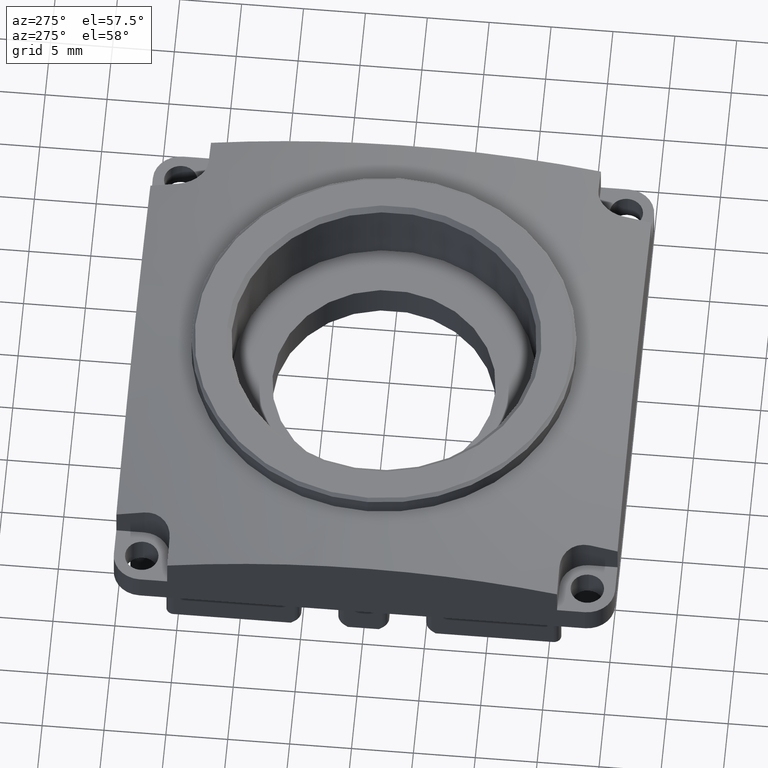
[diagram: clean part render]
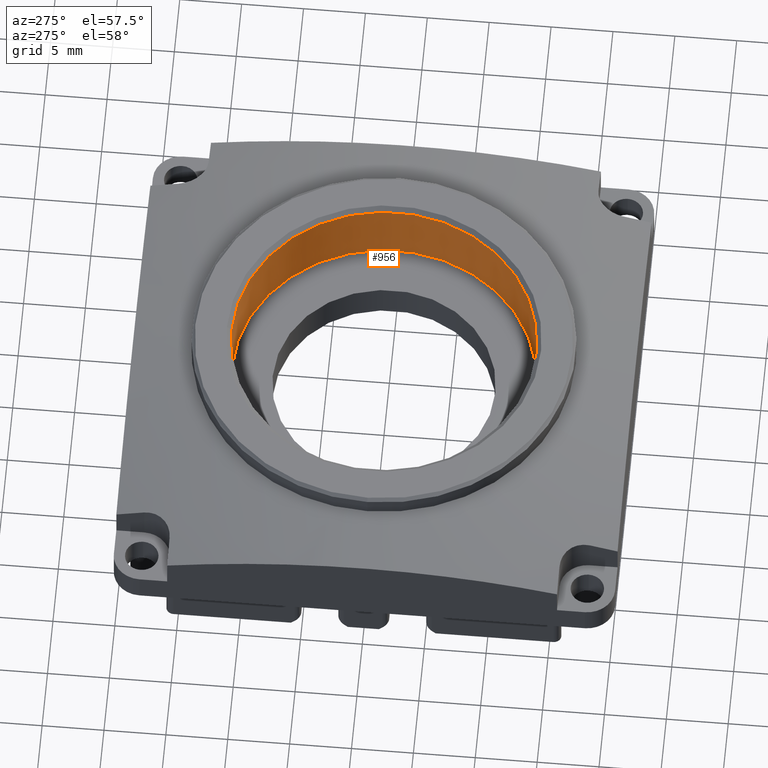
[diagram: same view with one face highlighted and labeled with its STEP entity id]
A machine part, auxiliary view. The second image highlights one B-rep face of the part: STEP entity #956.
In plain terms, the highlighted cylindrical surface (partial cylindrical patch) has radius 12.3 mm, axis along (0, 0, -1).
Its self-contained STEP definition (entity closure, byte-faithful):
#585=CYLINDRICAL_SURFACE('',#10841,12.3);
#956=ADVANCED_FACE('',(#1381),#585,.F.);
#1381=FACE_OUTER_BOUND('',#1849,.F.);
#1849=EDGE_LOOP('',(#3858,#3859,#3860,#3861));
#3858=ORIENTED_EDGE('',*,*,#7952,.F.);
#3859=ORIENTED_EDGE('',*,*,#7947,.F.);
#3860=ORIENTED_EDGE('',*,*,#7951,.T.);
#3861=ORIENTED_EDGE('',*,*,#7949,.F.);
#6889=CIRCLE('',#10458,12.3);
#6891=CIRCLE('',#10460,12.3);
#7947=EDGE_CURVE('',#9392,#9394,#6889,.T.);
#7949=EDGE_CURVE('',#9395,#9397,#6891,.T.);
#7951=EDGE_CURVE('',#9392,#9397,#8651,.T.);
#7952=EDGE_CURVE('',#9394,#9395,#8652,.T.);
#8651=LINE('',#15311,#9327);
#8652=LINE('',#15312,#9328);
#9327=VECTOR('',#12259,5.67);
#9328=VECTOR('',#12260,5.67);
#9392=VERTEX_POINT('',#13228);
#9394=VERTEX_POINT('',#13230);
#9395=VERTEX_POINT('',#13231);
#9397=VERTEX_POINT('',#13233);
#10458=AXIS2_PLACEMENT_3D('',#15307,#12251,#12252);
#10460=AXIS2_PLACEMENT_3D('',#15309,#12255,#12256);
#10841=AXIS2_PLACEMENT_3D('',#15740,#13067,#13068);
#12251=DIRECTION('',(0.,0.,-1.));
#12252=DIRECTION('',(0.,1.,0.));
#12255=DIRECTION('',(0.,0.,1.));
#12256=DIRECTION('',(0.,-1.,0.));
#12259=DIRECTION('',(0.,0.,1.));
#12260=DIRECTION('',(0.,0.,1.));
#13067=DIRECTION('',(0.,0.,-1.));
#13068=DIRECTION('',(0.,1.,0.));
#13228=CARTESIAN_POINT('',(0.,12.2999999999999,3.20000000000006));
#13230=CARTESIAN_POINT('',(0.,-12.3000000000001,3.20000000000006));
#13231=CARTESIAN_POINT('',(0.,-12.3000000000001,8.87000000000006));
#13233=CARTESIAN_POINT('',(0.,12.2999999999999,8.87000000000005));
#15307=CARTESIAN_POINT('',(0.,0.,3.20000000000006));
#15309=CARTESIAN_POINT('',(0.,0.,8.87000000000006));
#15311=CARTESIAN_POINT('',(0.,12.2999999999999,3.20000000000006));
#15312=CARTESIAN_POINT('',(0.,-12.3000000000001,3.20000000000006));
#15740=CARTESIAN_POINT('',(0.,0.,2.80000000000005));